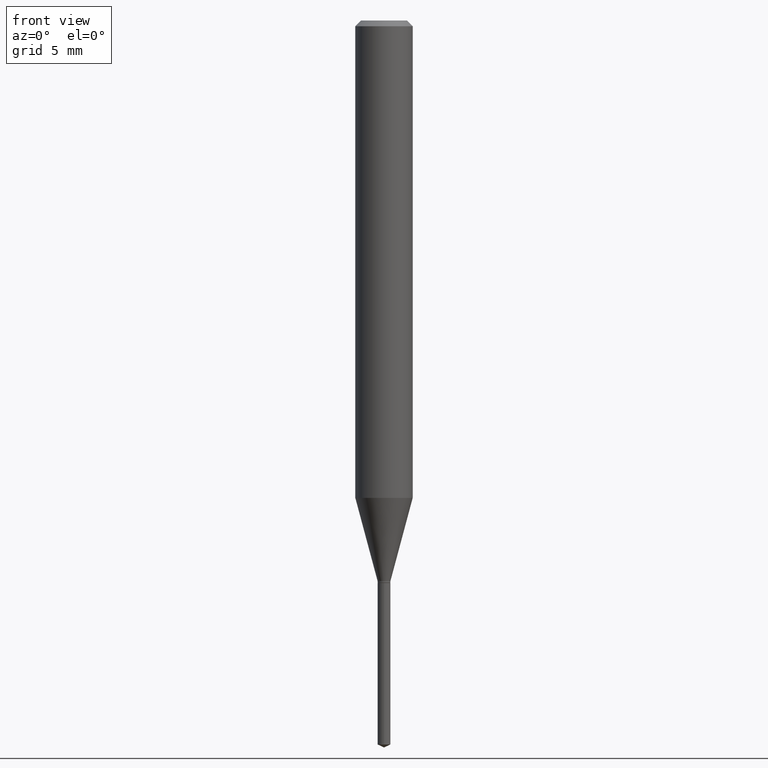
[diagram: clean part render]
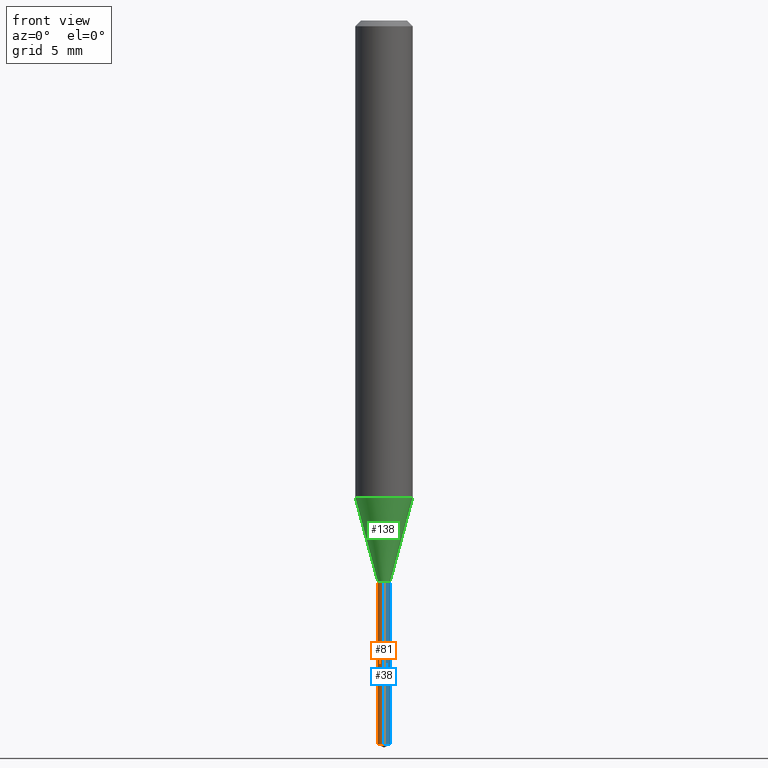
[diagram: same view with three faces highlighted in distinct colors, each labeled with its STEP entity id]
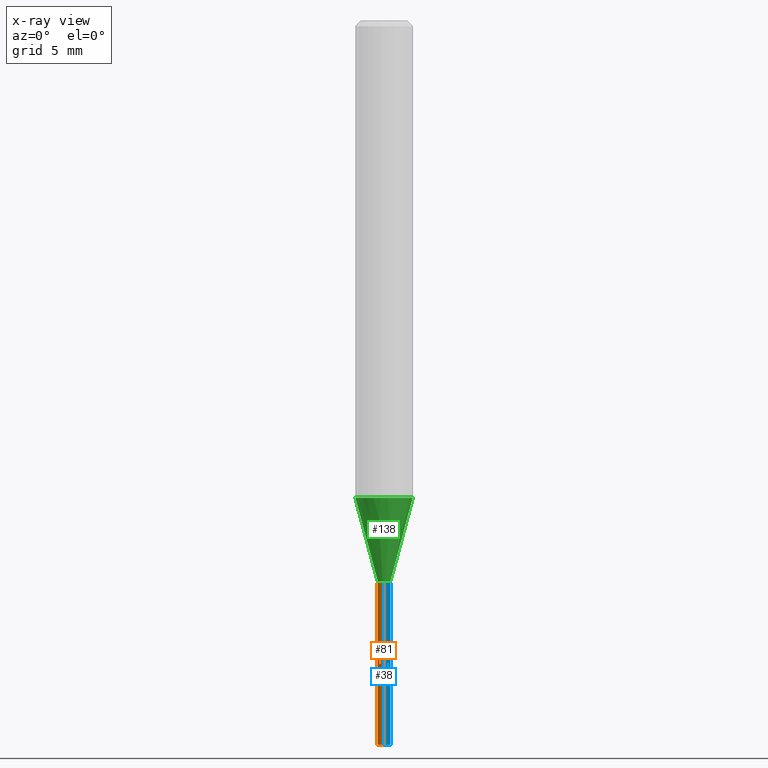
[diagram: x-ray of the same camera — body ghosted, the three highlighted faces saturated]
A machine part, front view with three faces highlighted in distinct colors.
The next image is the same camera in x-ray (body ghosted, the three faces saturated) — at least one of them is partly hidden behind the body in this view.
Their STEP definitions:

[orange] entity #81 — the highlighted cylindrical surface (edge-blend (fillet) strip) has radius 0.3353 mm, axis along (-0, 0, 1).
#13 = AXIS2_PLACEMENT_3D ( 'NONE', #100, #281, #401 ) ;
#27 = CARTESIAN_POINT ( 'NONE',  ( 9.379164112036967186E-17, 0.01319999999999480096, -1.489944738912354127 ) ) ;
#44 = CIRCLE ( 'NONE', #270, 0.01319999999999999993 ) ;
#47 = EDGE_LOOP ( 'NONE', ( #164, #203, #420, #126 ) ) ;
#49 = CARTESIAN_POINT ( 'NONE',  ( 3.643609475682207716E-29, -5.202119845817557536E-15, -1.489944738912354127 ) ) ;
#56 = DIRECTION ( 'NONE',  ( -6.982962677686265133E-15, -1.000000000000000000, 0.000000000000000000 ) ) ;
#64 = DIRECTION ( 'NONE',  ( -2.445457056059012515E-29, 3.491498165692530705E-15, 1.000000000000000000 ) ) ;
#68 = EDGE_CURVE ( 'NONE', #106, #197, #174, .T. ) ;
#78 = CIRCLE ( 'NONE', #391, 0.01319999999999999993 ) ;
#80 = CARTESIAN_POINT ( 'NONE',  ( -9.217510734542229325E-17, -0.01320000000000520410, -1.489944738912354127 ) ) ;
#81 = ADVANCED_FACE ( 'NONE', ( #474 ), #131, .T. ) ;
#88 = DIRECTION ( 'NONE',  ( -6.982962677686265133E-15, -1.000000000000000000, 0.000000000000000000 ) ) ;
#100 = CARTESIAN_POINT ( 'NONE',  ( 2.830630143159295633E-29, -4.041389649710940900E-15, -1.157499999999999973 ) ) ;
#106 = VERTEX_POINT ( 'NONE', #27 ) ;
#126 = ORIENTED_EDGE ( 'NONE', *, *, #440, .F. ) ;
#131 = CYLINDRICAL_SURFACE ( 'NONE', #13, 0.01319999999999999993 ) ;
#164 = ORIENTED_EDGE ( 'NONE', *, *, #68, .F. ) ;
#174 = LINE ( 'NONE', #364, #485 ) ;
#184 = CARTESIAN_POINT ( 'NONE',  ( 9.379164112036970884E-17, 0.01319999999999595629, -1.157499999999999973 ) ) ;
#195 = VERTEX_POINT ( 'NONE', #80 ) ;
#197 = VERTEX_POINT ( 'NONE', #184 ) ;
#203 = ORIENTED_EDGE ( 'NONE', *, *, #349, .T. ) ;
#236 = DIRECTION ( 'NONE',  ( -2.445457056059012515E-29, 3.491498165692530705E-15, 1.000000000000000000 ) ) ;
#270 = AXIS2_PLACEMENT_3D ( 'NONE', #427, #236, #56 ) ;
#281 = DIRECTION ( 'NONE',  ( -2.445457056059012515E-29, 3.491498165692530705E-15, 1.000000000000000000 ) ) ;
#310 = CARTESIAN_POINT ( 'NONE',  ( -9.217510734543039140E-17, -0.01320000000000404183, -1.157499999999999973 ) ) ;
#326 = EDGE_CURVE ( 'NONE', #195, #424, #452, .T. ) ;
#346 = DIRECTION ( 'NONE',  ( -2.445457056059012515E-29, 3.491498165692530705E-15, 1.000000000000000000 ) ) ;
#349 = EDGE_CURVE ( 'NONE', #106, #195, #78, .T. ) ;
#364 = CARTESIAN_POINT ( 'NONE',  ( 9.379164112036151208E-17, 0.01319999999999595629, -1.157499999999999973 ) ) ;
#388 = CARTESIAN_POINT ( 'NONE',  ( -9.217510734543039140E-17, -0.01320000000000404183, -1.157499999999999973 ) ) ;
#391 = AXIS2_PLACEMENT_3D ( 'NONE', #49, #346, #88 ) ;
#401 = DIRECTION ( 'NONE',  ( -6.982962677686265133E-15, -1.000000000000000000, 0.000000000000000000 ) ) ;
#420 = ORIENTED_EDGE ( 'NONE', *, *, #326, .T. ) ;
#424 = VERTEX_POINT ( 'NONE', #388 ) ;
#427 = CARTESIAN_POINT ( 'NONE',  ( 2.830630143159295633E-29, -4.041389649710940900E-15, -1.157499999999999973 ) ) ;
#429 = VECTOR ( 'NONE', #453, 39.37007874015748143 ) ;
#440 = EDGE_CURVE ( 'NONE', #197, #424, #44, .T. ) ;
#452 = LINE ( 'NONE', #310, #429 ) ;
#453 = DIRECTION ( 'NONE',  ( -2.445457056059012515E-29, 3.491498165692530705E-15, 1.000000000000000000 ) ) ;
#474 = FACE_OUTER_BOUND ( 'NONE', #47, .T. ) ;
#485 = VECTOR ( 'NONE', #64, 39.37007874015748143 ) ;

[blue] entity #38 — the highlighted cylindrical surface (edge-blend (fillet) strip) has radius 0.3353 mm, axis along (-0, 0, 1).
#27 = CARTESIAN_POINT ( 'NONE',  ( 9.379164112036967186E-17, 0.01319999999999480096, -1.489944738912354127 ) ) ;
#38 = ADVANCED_FACE ( 'NONE', ( #171 ), #243, .T. ) ;
#45 = AXIS2_PLACEMENT_3D ( 'NONE', #332, #327, #404 ) ;
#64 = DIRECTION ( 'NONE',  ( -2.445457056059012515E-29, 3.491498165692530705E-15, 1.000000000000000000 ) ) ;
#68 = EDGE_CURVE ( 'NONE', #106, #197, #174, .T. ) ;
#80 = CARTESIAN_POINT ( 'NONE',  ( -9.217510734542229325E-17, -0.01320000000000520410, -1.489944738912354127 ) ) ;
#97 = ORIENTED_EDGE ( 'NONE', *, *, #326, .F. ) ;
#106 = VERTEX_POINT ( 'NONE', #27 ) ;
#132 = EDGE_CURVE ( 'NONE', #195, #106, #353, .T. ) ;
#171 = FACE_OUTER_BOUND ( 'NONE', #200, .T. ) ;
#174 = LINE ( 'NONE', #364, #485 ) ;
#184 = CARTESIAN_POINT ( 'NONE',  ( 9.379164112036970884E-17, 0.01319999999999595629, -1.157499999999999973 ) ) ;
#195 = VERTEX_POINT ( 'NONE', #80 ) ;
#197 = VERTEX_POINT ( 'NONE', #184 ) ;
#200 = EDGE_LOOP ( 'NONE', ( #228, #464, #233, #97 ) ) ;
#223 = DIRECTION ( 'NONE',  ( -2.445457056059012515E-29, 3.491498165692530705E-15, 1.000000000000000000 ) ) ;
#228 = ORIENTED_EDGE ( 'NONE', *, *, #132, .T. ) ;
#233 = ORIENTED_EDGE ( 'NONE', *, *, #481, .F. ) ;
#242 = CARTESIAN_POINT ( 'NONE',  ( 2.830630143159295633E-29, -4.041389649710940900E-15, -1.157499999999999973 ) ) ;
#243 = CYLINDRICAL_SURFACE ( 'NONE', #45, 0.01319999999999999993 ) ;
#246 = AXIS2_PLACEMENT_3D ( 'NONE', #407, #223, #375 ) ;
#310 = CARTESIAN_POINT ( 'NONE',  ( -9.217510734543039140E-17, -0.01320000000000404183, -1.157499999999999973 ) ) ;
#326 = EDGE_CURVE ( 'NONE', #195, #424, #452, .T. ) ;
#327 = DIRECTION ( 'NONE',  ( -2.445457056059012515E-29, 3.491498165692530705E-15, 1.000000000000000000 ) ) ;
#332 = CARTESIAN_POINT ( 'NONE',  ( 2.830630143159295633E-29, -4.041389649710940900E-15, -1.157499999999999973 ) ) ;
#353 = CIRCLE ( 'NONE', #246, 0.01319999999999999993 ) ;
#356 = DIRECTION ( 'NONE',  ( -2.445457056059012515E-29, 3.491498165692530705E-15, 1.000000000000000000 ) ) ;
#364 = CARTESIAN_POINT ( 'NONE',  ( 9.379164112036151208E-17, 0.01319999999999595629, -1.157499999999999973 ) ) ;
#375 = DIRECTION ( 'NONE',  ( -6.982962677686265133E-15, -1.000000000000000000, 0.000000000000000000 ) ) ;
#388 = CARTESIAN_POINT ( 'NONE',  ( -9.217510734543039140E-17, -0.01320000000000404183, -1.157499999999999973 ) ) ;
#397 = DIRECTION ( 'NONE',  ( -6.982962677686265133E-15, -1.000000000000000000, 0.000000000000000000 ) ) ;
#404 = DIRECTION ( 'NONE',  ( -6.982962677686265133E-15, -1.000000000000000000, 0.000000000000000000 ) ) ;
#407 = CARTESIAN_POINT ( 'NONE',  ( 3.643609475682207716E-29, -5.202119845817557536E-15, -1.489944738912354127 ) ) ;
#412 = CIRCLE ( 'NONE', #451, 0.01319999999999999993 ) ;
#424 = VERTEX_POINT ( 'NONE', #388 ) ;
#429 = VECTOR ( 'NONE', #453, 39.37007874015748143 ) ;
#451 = AXIS2_PLACEMENT_3D ( 'NONE', #242, #356, #397 ) ;
#452 = LINE ( 'NONE', #310, #429 ) ;
#453 = DIRECTION ( 'NONE',  ( -2.445457056059012515E-29, 3.491498165692530705E-15, 1.000000000000000000 ) ) ;
#464 = ORIENTED_EDGE ( 'NONE', *, *, #68, .T. ) ;
#481 = EDGE_CURVE ( 'NONE', #424, #197, #412, .T. ) ;
#485 = VECTOR ( 'NONE', #64, 39.37007874015748143 ) ;

[green] entity #138 — the highlighted conical surface has half-angle 15 deg.
#6 = DIRECTION ( 'NONE',  ( -2.445468806185136597E-29, 3.491481338843145583E-15, 1.000000000000000000 ) ) ;
#9 = AXIS2_PLACEMENT_3D ( 'NONE', #40, #410, #181 ) ;
#24 = DIRECTION ( 'NONE',  ( -2.445468806185136597E-29, 3.491481338843145583E-15, 1.000000000000000000 ) ) ;
#31 = EDGE_CURVE ( 'NONE', #371, #271, #225, .T. ) ;
#36 = CONICAL_SURFACE ( 'NONE', #9, 0.01319999999999999993, 0.2617993877991500740 ) ;
#39 = FACE_OUTER_BOUND ( 'NONE', #305, .T. ) ;
#40 = CARTESIAN_POINT ( 'NONE',  ( 2.820848267934554903E-29, -4.027423724355568083E-15, -1.153499999999999970 ) ) ;
#82 = CARTESIAN_POINT ( 'NONE',  ( -0.01319999999999999993, -3.939742175578210590E-15, -1.153499999999999970 ) ) ;
#104 = AXIS2_PLACEMENT_3D ( 'NONE', #250, #24, #241 ) ;
#114 = CARTESIAN_POINT ( 'NONE',  ( 0.05905000000000011628, -3.842324483824382352E-15, -0.9823854704729667597 ) ) ;
#117 = DIRECTION ( 'NONE',  ( 1.000000000000000000, -6.982962677686252511E-15, 0.000000000000000000 ) ) ;
#137 = ORIENTED_EDGE ( 'NONE', *, *, #179, .F. ) ;
#138 = ADVANCED_FACE ( 'NONE', ( #39 ), #36, .T. ) ;
#139 = CARTESIAN_POINT ( 'NONE',  ( -0.01319999999999999993, -3.933632083235234933E-15, -1.153499999999999970 ) ) ;
#161 = CARTESIAN_POINT ( 'NONE',  ( -0.05905000000000011628, -3.010405052240667150E-15, -0.9823854704729667597 ) ) ;
#167 = CARTESIAN_POINT ( 'NONE',  ( 0.01319999999999999993, -4.119598831701026627E-15, -1.153499999999999970 ) ) ;
#179 = EDGE_CURVE ( 'NONE', #433, #371, #261, .T. ) ;
#181 = DIRECTION ( 'NONE',  ( 1.000000000000000000, -6.982962677686252511E-15, 0.000000000000000000 ) ) ;
#188 = AXIS2_PLACEMENT_3D ( 'NONE', #234, #6, #117 ) ;
#189 = ORIENTED_EDGE ( 'NONE', *, *, #479, .T. ) ;
#208 = DIRECTION ( 'NONE',  ( 0.2588190451025213501, 1.565188264969621968E-15, 0.9659258262890682012 ) ) ;
#225 = CIRCLE ( 'NONE', #104, 0.05905000000000011628 ) ;
#234 = CARTESIAN_POINT ( 'NONE',  ( 2.820848267934554903E-29, -4.027423724355568083E-15, -1.153499999999999970 ) ) ;
#237 = ORIENTED_EDGE ( 'NONE', *, *, #31, .F. ) ;
#238 = VECTOR ( 'NONE', #415, 39.37007874015747433 ) ;
#241 = DIRECTION ( 'NONE',  ( 1.000000000000000000, -6.982962677686266711E-15, 0.000000000000000000 ) ) ;
#250 = CARTESIAN_POINT ( 'NONE',  ( 2.402393023691149824E-29, -3.429980537707007431E-15, -0.9823854704729667597 ) ) ;
#261 = LINE ( 'NONE', #139, #238 ) ;
#271 = VERTEX_POINT ( 'NONE', #114 ) ;
#282 = LINE ( 'NONE', #167, #351 ) ;
#305 = EDGE_LOOP ( 'NONE', ( #137, #385, #189, #237 ) ) ;
#351 = VECTOR ( 'NONE', #208, 39.37007874015747433 ) ;
#371 = VERTEX_POINT ( 'NONE', #161 ) ;
#385 = ORIENTED_EDGE ( 'NONE', *, *, #395, .T. ) ;
#395 = EDGE_CURVE ( 'NONE', #433, #472, #406, .T. ) ;
#406 = CIRCLE ( 'NONE', #188, 0.01319999999999999993 ) ;
#410 = DIRECTION ( 'NONE',  ( -2.445468806185136597E-29, 3.491481338843145583E-15, 1.000000000000000000 ) ) ;
#415 = DIRECTION ( 'NONE',  ( -0.2588190451025213501, 5.211531920934551042E-15, 0.9659258262890682012 ) ) ;
#433 = VERTEX_POINT ( 'NONE', #82 ) ;
#466 = CARTESIAN_POINT ( 'NONE',  ( 0.01319999999999999993, -4.119598831701026627E-15, -1.153499999999999970 ) ) ;
#472 = VERTEX_POINT ( 'NONE', #466 ) ;
#479 = EDGE_CURVE ( 'NONE', #472, #271, #282, .T. ) ;